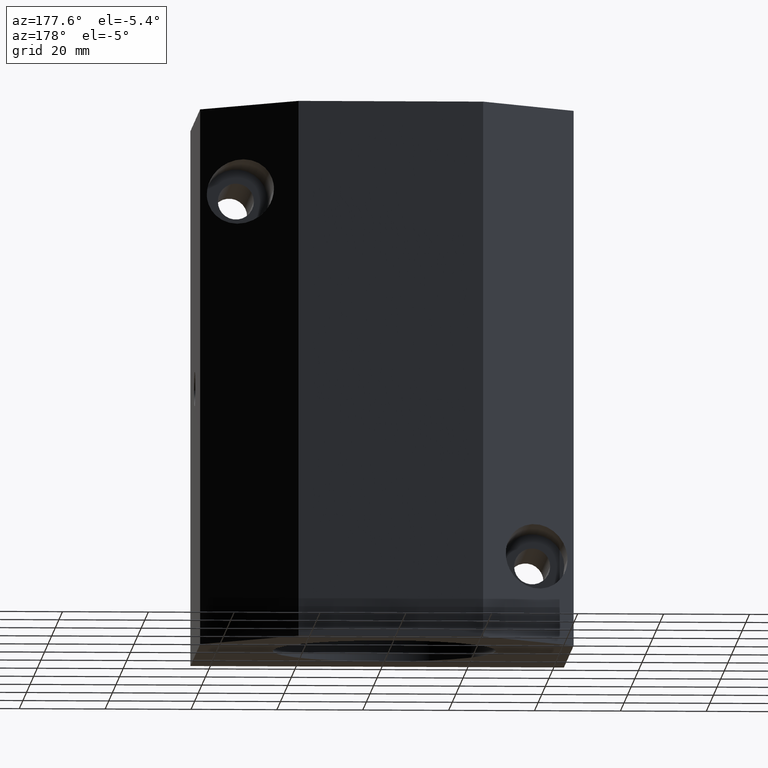
[diagram: clean part render]
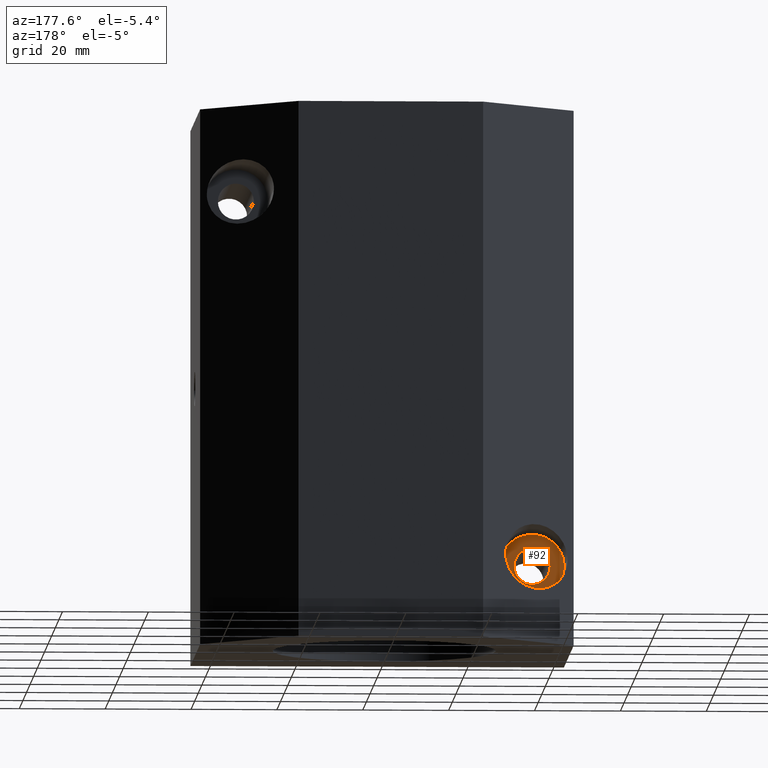
[diagram: same view with one face highlighted and labeled with its STEP entity id]
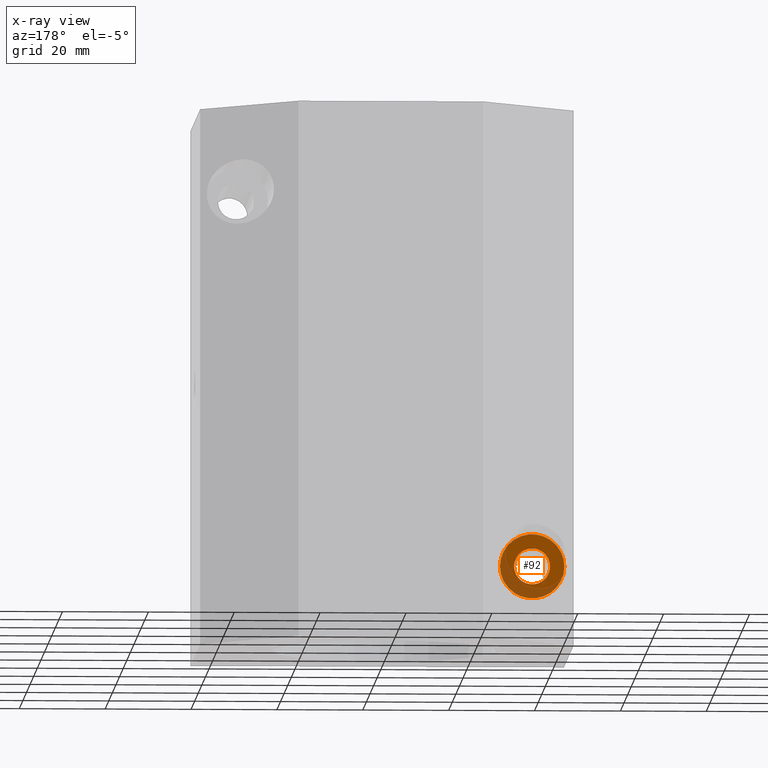
[diagram: x-ray of the same camera — body ghosted, the highlighted face saturated]
A machine part, auxiliary view. The second image highlights one B-rep face of the part: STEP entity #92.
The next image is the same camera in x-ray: the body ghosted, the highlighted face saturated — about 35% of this face is hidden behind the body in this view.
In plain terms, the highlighted planar face has unit normal (-0, -1, 0).
Its self-contained STEP definition (entity closure, byte-faithful):
#92 = ADVANCED_FACE( '', ( #146, #147 ), #148, .F. );
#146 = FACE_OUTER_BOUND( '', #226, .T. );
#147 = FACE_BOUND( '', #227, .T. );
#148 = PLANE( '', #228 );
#226 = EDGE_LOOP( '', ( #391, #392 ) );
#227 = EDGE_LOOP( '', ( #393, #394 ) );
#228 = AXIS2_PLACEMENT_3D( '', #395, #396, #397 );
#391 = ORIENTED_EDGE( '', *, *, #552, .T. );
#392 = ORIENTED_EDGE( '', *, *, #577, .T. );
#393 = ORIENTED_EDGE( '', *, *, #554, .F. );
#394 = ORIENTED_EDGE( '', *, *, #576, .F. );
#395 = CARTESIAN_POINT( '', ( -28.6500000000000, 38.0000000000000, 20.0000000000000 ) );
#396 = DIRECTION( '', ( -0.000000000000000, -1.00000000000000, 0.000000000000000 ) );
#397 = DIRECTION( '', ( -1.00000000000000, 0.000000000000000, 2.44921270764475E-016 ) );
#552 = EDGE_CURVE( '', #648, #652, #654, .T. );
#554 = EDGE_CURVE( '', #655, #658, #659, .T. );
#576 = EDGE_CURVE( '', #658, #655, #692, .T. );
#577 = EDGE_CURVE( '', #652, #648, #693, .T. );
#648 = VERTEX_POINT( '', #852 );
#652 = VERTEX_POINT( '', #857 );
#654 = CIRCLE( '', #860, 7.50000000000000 );
#655 = VERTEX_POINT( '', #861 );
#658 = VERTEX_POINT( '', #865 );
#659 = CIRCLE( '', #866, 4.20000000000000 );
#692 = CIRCLE( '', #908, 4.20000000000000 );
#693 = CIRCLE( '', #909, 7.50000000000000 );
#852 = CARTESIAN_POINT( '', ( -27.0000000000000, 38.0000000000000, 20.0000000000000 ) );
#857 = CARTESIAN_POINT( '', ( -42.0000000000000, 38.0000000000000, 20.0000000000000 ) );
#860 = AXIS2_PLACEMENT_3D( '', #1010, #1011, #1012 );
#861 = CARTESIAN_POINT( '', ( -30.3000000000000, 38.0000000000000, 20.0000000000000 ) );
#865 = CARTESIAN_POINT( '', ( -38.7000000000000, 38.0000000000000, 20.0000000000000 ) );
#866 = AXIS2_PLACEMENT_3D( '', #1014, #1015, #1016 );
#908 = AXIS2_PLACEMENT_3D( '', #1062, #1063, #1064 );
#909 = AXIS2_PLACEMENT_3D( '', #1065, #1066, #1067 );
#1010 = CARTESIAN_POINT( '', ( -34.5000000000000, 38.0000000000000, 20.0000000000000 ) );
#1011 = DIRECTION( '', ( -0.000000000000000, 1.00000000000000, 0.000000000000000 ) );
#1012 = DIRECTION( '', ( 1.00000000000000, 0.000000000000000, 0.000000000000000 ) );
#1014 = CARTESIAN_POINT( '', ( -34.5000000000000, 38.0000000000000, 20.0000000000000 ) );
#1015 = DIRECTION( '', ( -0.000000000000000, 1.00000000000000, 0.000000000000000 ) );
#1016 = DIRECTION( '', ( 1.00000000000000, 0.000000000000000, 0.000000000000000 ) );
#1062 = CARTESIAN_POINT( '', ( -34.5000000000000, 38.0000000000000, 20.0000000000000 ) );
#1063 = DIRECTION( '', ( -0.000000000000000, 1.00000000000000, 0.000000000000000 ) );
#1064 = DIRECTION( '', ( 1.00000000000000, 0.000000000000000, 0.000000000000000 ) );
#1065 = CARTESIAN_POINT( '', ( -34.5000000000000, 38.0000000000000, 20.0000000000000 ) );
#1066 = DIRECTION( '', ( -0.000000000000000, 1.00000000000000, 0.000000000000000 ) );
#1067 = DIRECTION( '', ( 1.00000000000000, 0.000000000000000, 0.000000000000000 ) );